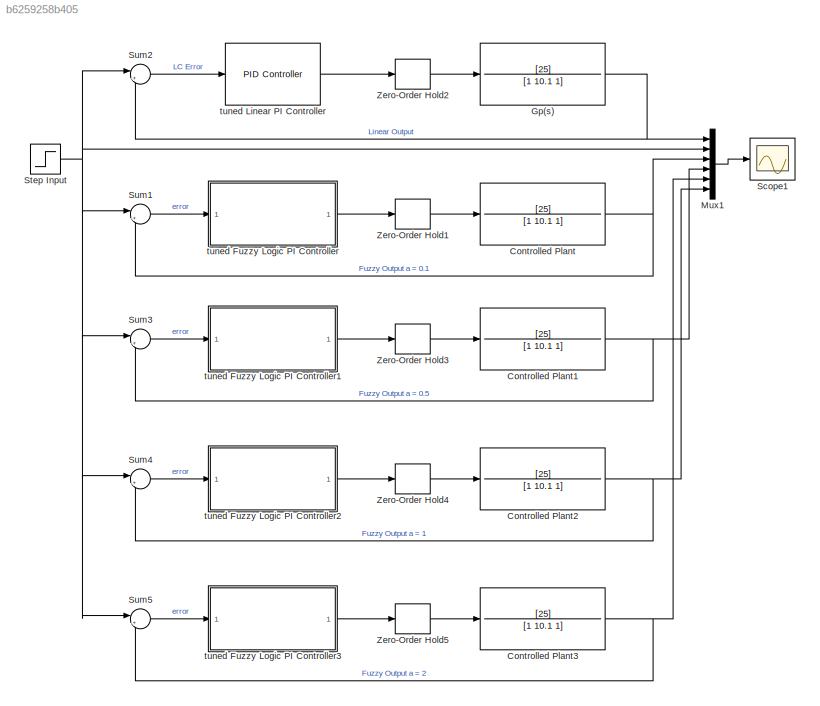
MODEL slx_b6259258b405
KIND model
CONFIG AbsTol = auto
CONFIG EnableMultiTasking = off
CONFIG FixedStep = auto
CONFIG MaxStep = auto
CONFIG MinStep = auto
CONFIG RelTol = 1e-3
CONFIG SampleTimeConstraint = Unconstrained
CONFIG SolverName = VariableStepAuto
CONFIG StartTime = 0.0
CONFIG StopTime = 15
WORKSPACE source: mxarray member
WORKSPACE a: Simulink.Parameter (value not decoded)
BLOCK [TransferFcn] Controlled Plant
  Denominator = [1 10.1 1]
  Numerator = [25]
BLOCK [TransferFcn] Controlled Plant1
  Denominator = [1 10.1 1]
  Numerator = [25]
BLOCK [TransferFcn] Controlled Plant2
  Denominator = [1 10.1 1]
  Numerator = [25]
BLOCK [TransferFcn] Controlled Plant3
  Denominator = [1 10.1 1]
  Numerator = [25]
BLOCK [TransferFcn] Gp(s)
  Denominator = [1 10.1 1]
  Numerator = [25]
BLOCK [Mux] Mux1
  DisplayOption = bar
  Inputs = 6
BLOCK [Scope] Scope1
  Floating = off
  NumInputPorts = 1
  ScopeSpecificationString = Simulink.scopes.TimeScopeBlockCfg('CurrentConfiguration', extmgr.ConfigurationSet(extmgr.Configuration('Core','General UI',true,'FigureColor',[1 1 1]),extmgr.Configuration('Core','Source UI',true),extmgr.Configuration('Sources','WiredSimulink',true,'DataLogging',true,'DataLoggingVariableName','ScopeData1'),extmgr.Configuration('Visuals','Time Domain',true,'SerializedDisplays',{struct('MinYLimReal'...<+2035ch>
BLOCK [Step] Step Input
  After = 50
  Before = 50
  SampleTime = 0
BLOCK [Sum] Sum1
  Inputs = |+-
BLOCK [Sum] Sum2
  Inputs = |+-
BLOCK [Sum] Sum3
  Inputs = |+-
BLOCK [Sum] Sum4
  Inputs = |+-
BLOCK [Sum] Sum5
  Inputs = |+-
BLOCK [ZeroOrderHold] Zero-Order Hold1
  SampleTime = -1
BLOCK [ZeroOrderHold] Zero-Order Hold2
  SampleTime = -1
BLOCK [ZeroOrderHold] Zero-Order Hold3
  SampleTime = -1
BLOCK [ZeroOrderHold] Zero-Order Hold4
  SampleTime = -1
BLOCK [ZeroOrderHold] Zero-Order Hold5
  SampleTime = -1
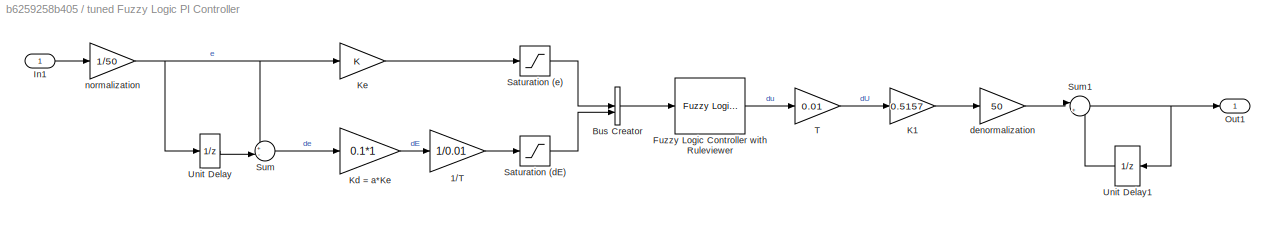
BLOCK [SubSystem] tuned Fuzzy Logic PI Controller
BLOCK [Gain] tuned Fuzzy Logic PI Controller/1//T
  Gain = 1/0.01
BLOCK [BusCreator] tuned Fuzzy Logic PI Controller/Bus Creator
  DisplayOption = bar
  InheritFromInputs = on
  Inputs = 2
BLOCK [Reference] tuned Fuzzy Logic PI Controller/Fuzzy Logic Controller with Ruleviewer  REF=fuzblock/Fuzzy Logic   (lib defined in mdl_858b3b3e7478)
Controller 
with Ruleviewer
  SourceBlock = fuzblock/Fuzzy Logic \nController \nwith Ruleviewer
  SourceType = Fuzzy Inference System
BLOCK [Inport] tuned Fuzzy Logic PI Controller/In1
BLOCK [Gain] tuned Fuzzy Logic PI Controller/K1
  Gain = 0.5157
BLOCK [Gain] tuned Fuzzy Logic PI Controller/Kd = a*Ke
  Gain = 0.1*1
BLOCK [Gain] tuned Fuzzy Logic PI Controller/Ke
BLOCK [Outport] tuned Fuzzy Logic PI Controller/Out1
BLOCK [Saturate] tuned Fuzzy Logic PI Controller/Saturation (dE)
  LowerLimit = -1
  UpperLimit = 1
BLOCK [Saturate] tuned Fuzzy Logic PI Controller/Saturation (e)
  LowerLimit = -1
  UpperLimit = 1
BLOCK [Sum] tuned Fuzzy Logic PI Controller/Sum
  Inputs = +-|
BLOCK [Sum] tuned Fuzzy Logic PI Controller/Sum1
  Inputs = |++
BLOCK [Gain] tuned Fuzzy Logic PI Controller/T
  Gain = 0.01
BLOCK [UnitDelay] tuned Fuzzy Logic PI Controller/Unit Delay
  HasFrameUpgradeWarning = on
  SampleTime = -1
BLOCK [UnitDelay] tuned Fuzzy Logic PI Controller/Unit Delay1
  HasFrameUpgradeWarning = on
  SampleTime = -1
BLOCK [Gain] tuned Fuzzy Logic PI Controller/denormalization
  Gain = 50
BLOCK [Gain] tuned Fuzzy Logic PI Controller/normalization
  Gain = 1/50
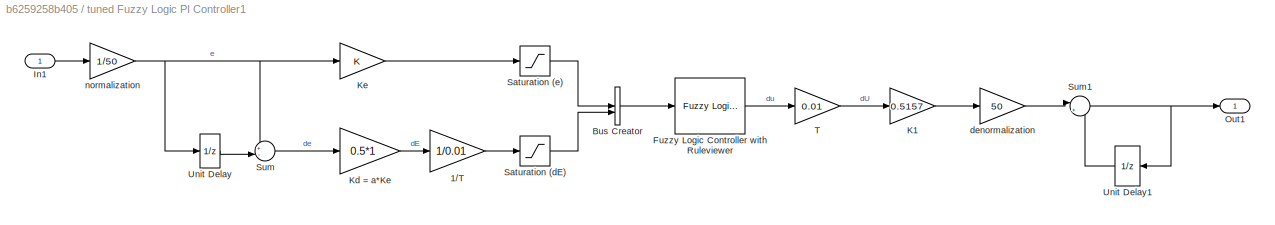
BLOCK [SubSystem] tuned Fuzzy Logic PI Controller1
BLOCK [Gain] tuned Fuzzy Logic PI Controller1/1//T
  Gain = 1/0.01
BLOCK [BusCreator] tuned Fuzzy Logic PI Controller1/Bus Creator
  DisplayOption = bar
  InheritFromInputs = on
  Inputs = 2
BLOCK [Reference] tuned Fuzzy Logic PI Controller1/Fuzzy Logic Controller with Ruleviewer  REF=fuzblock/Fuzzy Logic   (lib defined in mdl_858b3b3e7478)
Controller 
with Ruleviewer
  SourceBlock = fuzblock/Fuzzy Logic \nController \nwith Ruleviewer
  SourceType = Fuzzy Inference System
BLOCK [Inport] tuned Fuzzy Logic PI Controller1/In1
BLOCK [Gain] tuned Fuzzy Logic PI Controller1/K1
  Gain = 0.5157
BLOCK [Gain] tuned Fuzzy Logic PI Controller1/Kd = a*Ke
  Gain = 0.5*1
BLOCK [Gain] tuned Fuzzy Logic PI Controller1/Ke
BLOCK [Outport] tuned Fuzzy Logic PI Controller1/Out1
BLOCK [Saturate] tuned Fuzzy Logic PI Controller1/Saturation (dE)
  LowerLimit = -1
  UpperLimit = 1
BLOCK [Saturate] tuned Fuzzy Logic PI Controller1/Saturation (e)
  LowerLimit = -1
  UpperLimit = 1
BLOCK [Sum] tuned Fuzzy Logic PI Controller1/Sum
  Inputs = +-|
BLOCK [Sum] tuned Fuzzy Logic PI Controller1/Sum1
  Inputs = |++
BLOCK [Gain] tuned Fuzzy Logic PI Controller1/T
  Gain = 0.01
BLOCK [UnitDelay] tuned Fuzzy Logic PI Controller1/Unit Delay
  HasFrameUpgradeWarning = on
  SampleTime = -1
BLOCK [UnitDelay] tuned Fuzzy Logic PI Controller1/Unit Delay1
  HasFrameUpgradeWarning = on
  SampleTime = -1
BLOCK [Gain] tuned Fuzzy Logic PI Controller1/denormalization
  Gain = 50
BLOCK [Gain] tuned Fuzzy Logic PI Controller1/normalization
  Gain = 1/50
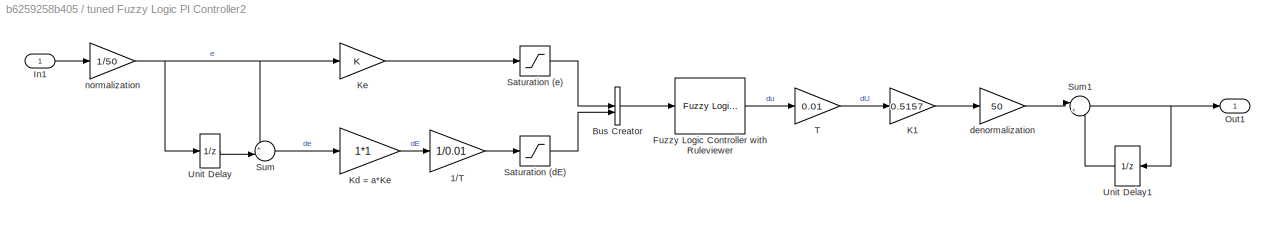
BLOCK [SubSystem] tuned Fuzzy Logic PI Controller2
BLOCK [Gain] tuned Fuzzy Logic PI Controller2/1//T
  Gain = 1/0.01
BLOCK [BusCreator] tuned Fuzzy Logic PI Controller2/Bus Creator
  DisplayOption = bar
  InheritFromInputs = on
  Inputs = 2
BLOCK [Reference] tuned Fuzzy Logic PI Controller2/Fuzzy Logic Controller with Ruleviewer  REF=fuzblock/Fuzzy Logic   (lib defined in mdl_858b3b3e7478)
Controller 
with Ruleviewer
  SourceBlock = fuzblock/Fuzzy Logic \nController \nwith Ruleviewer
  SourceType = Fuzzy Inference System
BLOCK [Inport] tuned Fuzzy Logic PI Controller2/In1
BLOCK [Gain] tuned Fuzzy Logic PI Controller2/K1
  Gain = 0.5157
BLOCK [Gain] tuned Fuzzy Logic PI Controller2/Kd = a*Ke
  Gain = 1*1
BLOCK [Gain] tuned Fuzzy Logic PI Controller2/Ke
BLOCK [Outport] tuned Fuzzy Logic PI Controller2/Out1
BLOCK [Saturate] tuned Fuzzy Logic PI Controller2/Saturation (dE)
  LowerLimit = -1
  UpperLimit = 1
BLOCK [Saturate] tuned Fuzzy Logic PI Controller2/Saturation (e)
  LowerLimit = -1
  UpperLimit = 1
BLOCK [Sum] tuned Fuzzy Logic PI Controller2/Sum
  Inputs = +-|
BLOCK [Sum] tuned Fuzzy Logic PI Controller2/Sum1
  Inputs = |++
BLOCK [Gain] tuned Fuzzy Logic PI Controller2/T
  Gain = 0.01
BLOCK [UnitDelay] tuned Fuzzy Logic PI Controller2/Unit Delay
  HasFrameUpgradeWarning = on
  SampleTime = -1
BLOCK [UnitDelay] tuned Fuzzy Logic PI Controller2/Unit Delay1
  HasFrameUpgradeWarning = on
  SampleTime = -1
BLOCK [Gain] tuned Fuzzy Logic PI Controller2/denormalization
  Gain = 50
BLOCK [Gain] tuned Fuzzy Logic PI Controller2/normalization
  Gain = 1/50
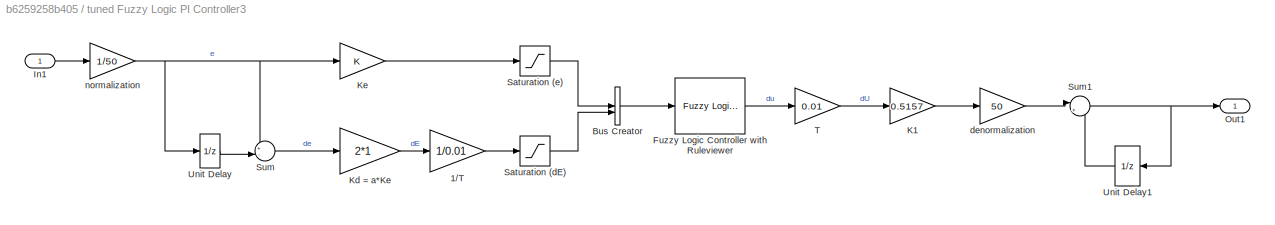
BLOCK [SubSystem] tuned Fuzzy Logic PI Controller3
BLOCK [Gain] tuned Fuzzy Logic PI Controller3/1//T
  Gain = 1/0.01
BLOCK [BusCreator] tuned Fuzzy Logic PI Controller3/Bus Creator
  DisplayOption = bar
  InheritFromInputs = on
  Inputs = 2
BLOCK [Reference] tuned Fuzzy Logic PI Controller3/Fuzzy Logic Controller with Ruleviewer  REF=fuzblock/Fuzzy Logic   (lib defined in mdl_858b3b3e7478)
Controller 
with Ruleviewer
  SourceBlock = fuzblock/Fuzzy Logic \nController \nwith Ruleviewer
  SourceType = Fuzzy Inference System
BLOCK [Inport] tuned Fuzzy Logic PI Controller3/In1
BLOCK [Gain] tuned Fuzzy Logic PI Controller3/K1
  Gain = 0.5157
BLOCK [Gain] tuned Fuzzy Logic PI Controller3/Kd = a*Ke
  Gain = 2*1
BLOCK [Gain] tuned Fuzzy Logic PI Controller3/Ke
BLOCK [Outport] tuned Fuzzy Logic PI Controller3/Out1
BLOCK [Saturate] tuned Fuzzy Logic PI Controller3/Saturation (dE)
  LowerLimit = -1
  UpperLimit = 1
BLOCK [Saturate] tuned Fuzzy Logic PI Controller3/Saturation (e)
  LowerLimit = -1
  UpperLimit = 1
BLOCK [Sum] tuned Fuzzy Logic PI Controller3/Sum
  Inputs = +-|
BLOCK [Sum] tuned Fuzzy Logic PI Controller3/Sum1
  Inputs = |++
BLOCK [Gain] tuned Fuzzy Logic PI Controller3/T
  Gain = 0.01
BLOCK [UnitDelay] tuned Fuzzy Logic PI Controller3/Unit Delay
  HasFrameUpgradeWarning = on
  SampleTime = -1
BLOCK [UnitDelay] tuned Fuzzy Logic PI Controller3/Unit Delay1
  HasFrameUpgradeWarning = on
  SampleTime = -1
BLOCK [Gain] tuned Fuzzy Logic PI Controller3/denormalization
  Gain = 50
BLOCK [Gain] tuned Fuzzy Logic PI Controller3/normalization
  Gain = 1/50
BLOCK [Reference] tuned Linear PI Controller  REF=slpidlib/PID Controller
  LibrarySourceBlock = simulink/Continuous/PID Controller
  SourceBlock = slpidlib/PID Controller
  SourceType = PID 1dof
NET Controlled Plant1:1 -> Mux1:4, Sum3:2
NET Controlled Plant2:1 -> Mux1:6, Sum4:2
NET Controlled Plant3:1 -> Mux1:5, Sum5:2
NET Controlled Plant:1 -> Mux1:3, Sum1:2
NET Gp(s):1 -> Mux1:1, Sum2:2
LINE Mux1:1 -> Scope1:1
NET Step Input:1 -> Mux1:2, Sum1:1, Sum2:1, Sum3:1, Sum4:1, Sum5:1
LINE Sum1:1 -> tuned Fuzzy Logic PI Controller:1
LINE Sum2:1 -> tuned Linear PI Controller:1
LINE Sum3:1 -> tuned Fuzzy Logic PI Controller1:1
LINE Sum4:1 -> tuned Fuzzy Logic PI Controller2:1
LINE Sum5:1 -> tuned Fuzzy Logic PI Controller3:1
LINE Zero-Order Hold1:1 -> Controlled Plant:1
LINE Zero-Order Hold2:1 -> Gp(s):1
LINE Zero-Order Hold3:1 -> Controlled Plant1:1
LINE Zero-Order Hold4:1 -> Controlled Plant2:1
LINE Zero-Order Hold5:1 -> Controlled Plant3:1
LINE tuned Fuzzy Logic PI Controller/1//T:1 -> tuned Fuzzy Logic PI Controller/Saturation (dE):1
LINE tuned Fuzzy Logic PI Controller/Bus Creator:1 -> tuned Fuzzy Logic PI Controller/Fuzzy Logic Controller with Ruleviewer:1
LINE tuned Fuzzy Logic PI Controller/Fuzzy Logic Controller with Ruleviewer:1 -> tuned Fuzzy Logic PI Controller/T:1
LINE tuned Fuzzy Logic PI Controller/In1:1 -> tuned Fuzzy Logic PI Controller/normalization:1
LINE tuned Fuzzy Logic PI Controller/K1:1 -> tuned Fuzzy Logic PI Controller/denormalization:1
LINE tuned Fuzzy Logic PI Controller/Kd = a*Ke:1 -> tuned Fuzzy Logic PI Controller/1//T:1
LINE tuned Fuzzy Logic PI Controller/Ke:1 -> tuned Fuzzy Logic PI Controller/Saturation (e):1
LINE tuned Fuzzy Logic PI Controller/Saturation (dE):1 -> tuned Fuzzy Logic PI Controller/Bus Creator:2
LINE tuned Fuzzy Logic PI Controller/Saturation (e):1 -> tuned Fuzzy Logic PI Controller/Bus Creator:1
NET tuned Fuzzy Logic PI Controller/Sum1:1 -> tuned Fuzzy Logic PI Controller/Out1:1, tuned Fuzzy Logic PI Controller/Unit Delay1:1
LINE tuned Fuzzy Logic PI Controller/Sum:1 -> tuned Fuzzy Logic PI Controller/Kd = a*Ke:1
LINE tuned Fuzzy Logic PI Controller/T:1 -> tuned Fuzzy Logic PI Controller/K1:1
LINE tuned Fuzzy Logic PI Controller/Unit Delay1:1 -> tuned Fuzzy Logic PI Controller/Sum1:2
LINE tuned Fuzzy Logic PI Controller/Unit Delay:1 -> tuned Fuzzy Logic PI Controller/Sum:2
LINE tuned Fuzzy Logic PI Controller/denormalization:1 -> tuned Fuzzy Logic PI Controller/Sum1:1
NET tuned Fuzzy Logic PI Controller/normalization:1 -> tuned Fuzzy Logic PI Controller/Ke:1, tuned Fuzzy Logic PI Controller/Sum:1, tuned Fuzzy Logic PI Controller/Unit Delay:1
LINE tuned Fuzzy Logic PI Controller1/1//T:1 -> tuned Fuzzy Logic PI Controller1/Saturation (dE):1
LINE tuned Fuzzy Logic PI Controller1/Bus Creator:1 -> tuned Fuzzy Logic PI Controller1/Fuzzy Logic Controller with Ruleviewer:1
LINE tuned Fuzzy Logic PI Controller1/Fuzzy Logic Controller with Ruleviewer:1 -> tuned Fuzzy Logic PI Controller1/T:1
LINE tuned Fuzzy Logic PI Controller1/In1:1 -> tuned Fuzzy Logic PI Controller1/normalization:1
LINE tuned Fuzzy Logic PI Controller1/K1:1 -> tuned Fuzzy Logic PI Controller1/denormalization:1
LINE tuned Fuzzy Logic PI Controller1/Kd = a*Ke:1 -> tuned Fuzzy Logic PI Controller1/1//T:1
LINE tuned Fuzzy Logic PI Controller1/Ke:1 -> tuned Fuzzy Logic PI Controller1/Saturation (e):1
LINE tuned Fuzzy Logic PI Controller1/Saturation (dE):1 -> tuned Fuzzy Logic PI Controller1/Bus Creator:2
LINE tuned Fuzzy Logic PI Controller1/Saturation (e):1 -> tuned Fuzzy Logic PI Controller1/Bus Creator:1
NET tuned Fuzzy Logic PI Controller1/Sum1:1 -> tuned Fuzzy Logic PI Controller1/Out1:1, tuned Fuzzy Logic PI Controller1/Unit Delay1:1
LINE tuned Fuzzy Logic PI Controller1/Sum:1 -> tuned Fuzzy Logic PI Controller1/Kd = a*Ke:1
LINE tuned Fuzzy Logic PI Controller1/T:1 -> tuned Fuzzy Logic PI Controller1/K1:1
LINE tuned Fuzzy Logic PI Controller1/Unit Delay1:1 -> tuned Fuzzy Logic PI Controller1/Sum1:2
LINE tuned Fuzzy Logic PI Controller1/Unit Delay:1 -> tuned Fuzzy Logic PI Controller1/Sum:2
LINE tuned Fuzzy Logic PI Controller1/denormalization:1 -> tuned Fuzzy Logic PI Controller1/Sum1:1
NET tuned Fuzzy Logic PI Controller1/normalization:1 -> tuned Fuzzy Logic PI Controller1/Ke:1, tuned Fuzzy Logic PI Controller1/Sum:1, tuned Fuzzy Logic PI Controller1/Unit Delay:1
LINE tuned Fuzzy Logic PI Controller1:1 -> Zero-Order Hold3:1
LINE tuned Fuzzy Logic PI Controller2/1//T:1 -> tuned Fuzzy Logic PI Controller2/Saturation (dE):1
LINE tuned Fuzzy Logic PI Controller2/Bus Creator:1 -> tuned Fuzzy Logic PI Controller2/Fuzzy Logic Controller with Ruleviewer:1
LINE tuned Fuzzy Logic PI Controller2/Fuzzy Logic Controller with Ruleviewer:1 -> tuned Fuzzy Logic PI Controller2/T:1
LINE tuned Fuzzy Logic PI Controller2/In1:1 -> tuned Fuzzy Logic PI Controller2/normalization:1
LINE tuned Fuzzy Logic PI Controller2/K1:1 -> tuned Fuzzy Logic PI Controller2/denormalization:1
LINE tuned Fuzzy Logic PI Controller2/Kd = a*Ke:1 -> tuned Fuzzy Logic PI Controller2/1//T:1
LINE tuned Fuzzy Logic PI Controller2/Ke:1 -> tuned Fuzzy Logic PI Controller2/Saturation (e):1
LINE tuned Fuzzy Logic PI Controller2/Saturation (dE):1 -> tuned Fuzzy Logic PI Controller2/Bus Creator:2
LINE tuned Fuzzy Logic PI Controller2/Saturation (e):1 -> tuned Fuzzy Logic PI Controller2/Bus Creator:1
NET tuned Fuzzy Logic PI Controller2/Sum1:1 -> tuned Fuzzy Logic PI Controller2/Out1:1, tuned Fuzzy Logic PI Controller2/Unit Delay1:1
LINE tuned Fuzzy Logic PI Controller2/Sum:1 -> tuned Fuzzy Logic PI Controller2/Kd = a*Ke:1
LINE tuned Fuzzy Logic PI Controller2/T:1 -> tuned Fuzzy Logic PI Controller2/K1:1
LINE tuned Fuzzy Logic PI Controller2/Unit Delay1:1 -> tuned Fuzzy Logic PI Controller2/Sum1:2
LINE tuned Fuzzy Logic PI Controller2/Unit Delay:1 -> tuned Fuzzy Logic PI Controller2/Sum:2
LINE tuned Fuzzy Logic PI Controller2/denormalization:1 -> tuned Fuzzy Logic PI Controller2/Sum1:1
NET tuned Fuzzy Logic PI Controller2/normalization:1 -> tuned Fuzzy Logic PI Controller2/Ke:1, tuned Fuzzy Logic PI Controller2/Sum:1, tuned Fuzzy Logic PI Controller2/Unit Delay:1
LINE tuned Fuzzy Logic PI Controller2:1 -> Zero-Order Hold4:1
LINE tuned Fuzzy Logic PI Controller3/1//T:1 -> tuned Fuzzy Logic PI Controller3/Saturation (dE):1
LINE tuned Fuzzy Logic PI Controller3/Bus Creator:1 -> tuned Fuzzy Logic PI Controller3/Fuzzy Logic Controller with Ruleviewer:1
LINE tuned Fuzzy Logic PI Controller3/Fuzzy Logic Controller with Ruleviewer:1 -> tuned Fuzzy Logic PI Controller3/T:1
LINE tuned Fuzzy Logic PI Controller3/In1:1 -> tuned Fuzzy Logic PI Controller3/normalization:1
LINE tuned Fuzzy Logic PI Controller3/K1:1 -> tuned Fuzzy Logic PI Controller3/denormalization:1
LINE tuned Fuzzy Logic PI Controller3/Kd = a*Ke:1 -> tuned Fuzzy Logic PI Controller3/1//T:1
LINE tuned Fuzzy Logic PI Controller3/Ke:1 -> tuned Fuzzy Logic PI Controller3/Saturation (e):1
LINE tuned Fuzzy Logic PI Controller3/Saturation (dE):1 -> tuned Fuzzy Logic PI Controller3/Bus Creator:2
LINE tuned Fuzzy Logic PI Controller3/Saturation (e):1 -> tuned Fuzzy Logic PI Controller3/Bus Creator:1
NET tuned Fuzzy Logic PI Controller3/Sum1:1 -> tuned Fuzzy Logic PI Controller3/Out1:1, tuned Fuzzy Logic PI Controller3/Unit Delay1:1
LINE tuned Fuzzy Logic PI Controller3/Sum:1 -> tuned Fuzzy Logic PI Controller3/Kd = a*Ke:1
LINE tuned Fuzzy Logic PI Controller3/T:1 -> tuned Fuzzy Logic PI Controller3/K1:1
LINE tuned Fuzzy Logic PI Controller3/Unit Delay1:1 -> tuned Fuzzy Logic PI Controller3/Sum1:2
LINE tuned Fuzzy Logic PI Controller3/Unit Delay:1 -> tuned Fuzzy Logic PI Controller3/Sum:2
LINE tuned Fuzzy Logic PI Controller3/denormalization:1 -> tuned Fuzzy Logic PI Controller3/Sum1:1
NET tuned Fuzzy Logic PI Controller3/normalization:1 -> tuned Fuzzy Logic PI Controller3/Ke:1, tuned Fuzzy Logic PI Controller3/Sum:1, tuned Fuzzy Logic PI Controller3/Unit Delay:1
LINE tuned Fuzzy Logic PI Controller3:1 -> Zero-Order Hold5:1
LINE tuned Fuzzy Logic PI Controller:1 -> Zero-Order Hold1:1
LINE tuned Linear PI Controller:1 -> Zero-Order Hold2:1
note: NET lines group one-source signal fan-out (src -> all destinations, sorted); 1:1 wires keep LINE
